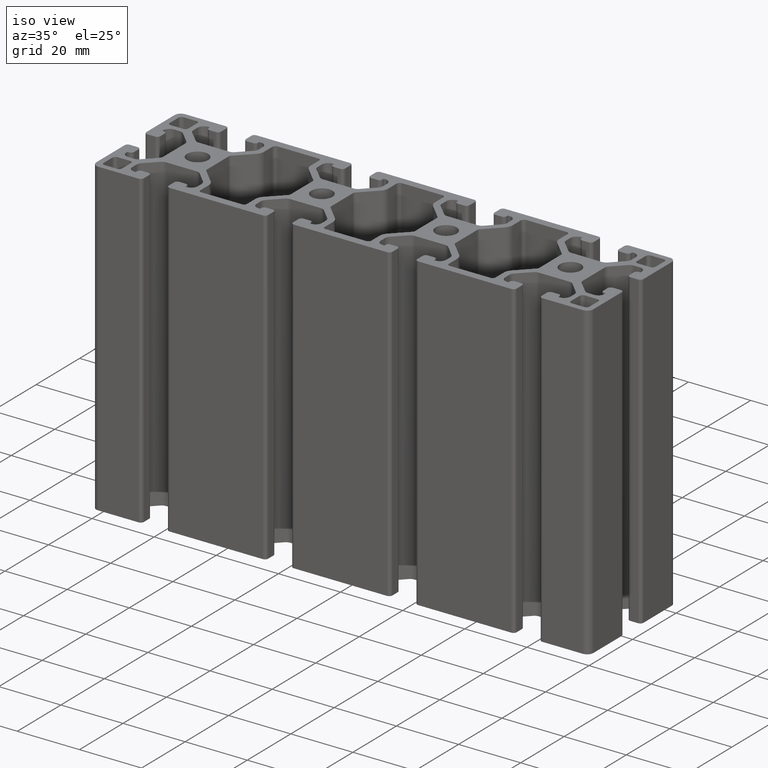
[diagram: clean part render]
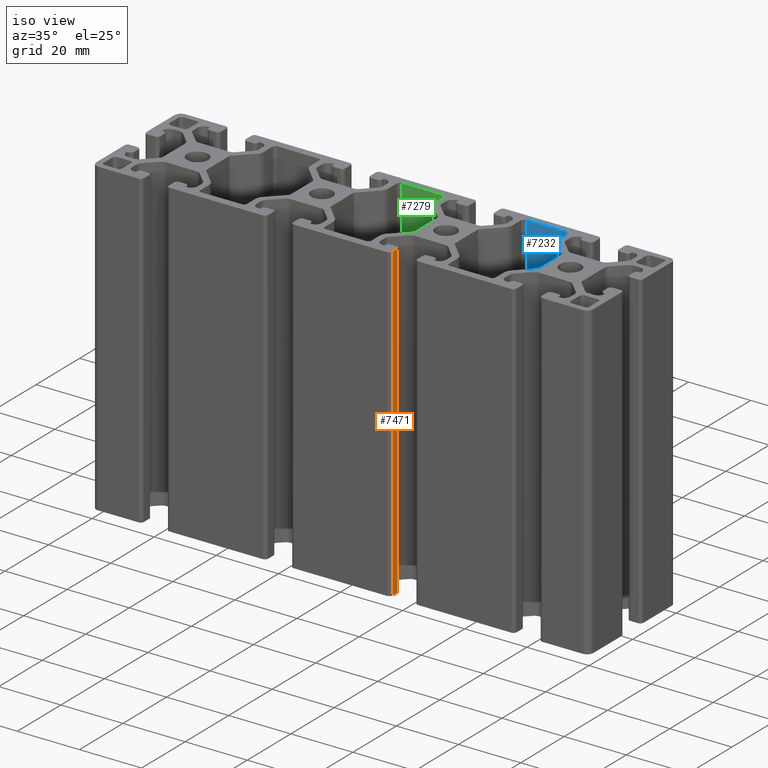
[diagram: same view with three faces highlighted in distinct colors, each labeled with its STEP entity id]
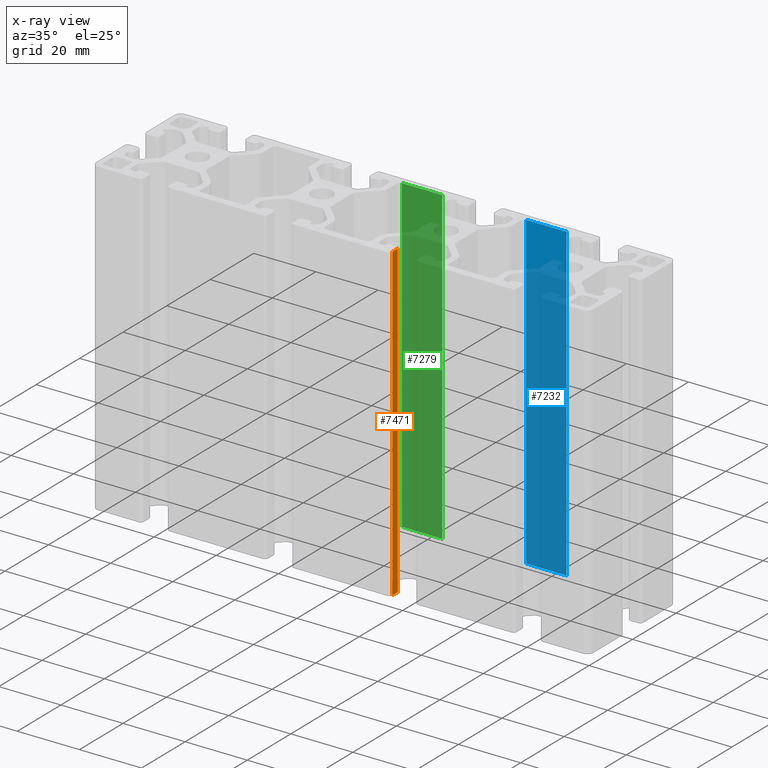
[diagram: x-ray of the same camera — body ghosted, the three highlighted faces saturated]
A machine part, iso view with three faces highlighted in distinct colors.
The next image is the same camera in x-ray (body ghosted, the three faces saturated) — at least one of them is partly hidden behind the body in this view.
Their STEP definitions:

[orange] entity #7471 — the highlighted planar face has unit normal (-1, 0, 0).
#172=PLANE('',#8105);
#497=FACE_OUTER_BOUND('',#877,.T.);
#877=EDGE_LOOP('',(#5813,#5814,#5815,#5816));
#1546=LINE('',#12143,#2310);
#1547=LINE('',#12146,#2311);
#1548=LINE('',#12148,#2312);
#1549=LINE('',#12149,#2313);
#2310=VECTOR('',#9882,100.);
#2311=VECTOR('',#9885,2.50000399189768);
#2312=VECTOR('',#9886,2.50000399189768);
#2313=VECTOR('',#9887,100.);
#3438=VERTEX_POINT('',#12137);
#3440=VERTEX_POINT('',#12141);
#3441=VERTEX_POINT('',#12145);
#3442=VERTEX_POINT('',#12147);
#4440=EDGE_CURVE('',#3440,#3438,#1546,.T.);
#4441=EDGE_CURVE('',#3438,#3441,#1547,.T.);
#4442=EDGE_CURVE('',#3442,#3440,#1548,.T.);
#4443=EDGE_CURVE('',#3442,#3441,#1549,.T.);
#5813=ORIENTED_EDGE('',*,*,#4441,.F.);
#5814=ORIENTED_EDGE('',*,*,#4440,.F.);
#5815=ORIENTED_EDGE('',*,*,#4442,.F.);
#5816=ORIENTED_EDGE('',*,*,#4443,.T.);
#7471=ADVANCED_FACE('',(#497),#172,.F.);
#8105=AXIS2_PLACEMENT_3D('',#12144,#9883,#9884);
#9882=DIRECTION('',(0.,0.,1.));
#9883=DIRECTION('center_axis',(-1.,0.,0.));
#9884=DIRECTION('ref_axis',(0.,-1.,0.));
#9885=DIRECTION('',(0.,1.,0.));
#9886=DIRECTION('',(0.,-1.,0.));
#9887=DIRECTION('',(0.,0.,1.));
#12137=CARTESIAN_POINT('',(16.,-19.0000019959489,100.));
#12141=CARTESIAN_POINT('',(16.,-19.0000019959489,0.));
#12143=CARTESIAN_POINT('',(16.,-19.0000019959489,0.));
#12144=CARTESIAN_POINT('Origin',(16.,-16.4999980040512,0.));
#12145=CARTESIAN_POINT('',(16.,-16.4999980040512,100.));
#12146=CARTESIAN_POINT('',(16.,-8.2499990020256,100.));
#12147=CARTESIAN_POINT('',(16.,-16.4999980040512,0.));
#12148=CARTESIAN_POINT('',(16.,-8.2499990020256,0.));
#12149=CARTESIAN_POINT('',(16.,-16.4999980040512,0.));

[blue] entity #7232 — the highlighted planar face has unit normal (0, 1, 0).
#50=PLANE('',#7632);
#258=FACE_OUTER_BOUND('',#636,.T.);
#636=EDGE_LOOP('',(#4861,#4862,#4863,#4864));
#1058=LINE('',#10690,#1822);
#1059=LINE('',#10693,#1823);
#1060=LINE('',#10695,#1824);
#1061=LINE('',#10696,#1825);
#1822=VECTOR('',#8448,100.);
#1823=VECTOR('',#8451,13.);
#1824=VECTOR('',#8452,13.);
#1825=VECTOR('',#8453,100.);
#2947=VERTEX_POINT('',#10686);
#2948=VERTEX_POINT('',#10688);
#2949=VERTEX_POINT('',#10692);
#2950=VERTEX_POINT('',#10694);
#3718=EDGE_CURVE('',#2948,#2947,#1058,.T.);
#3719=EDGE_CURVE('',#2947,#2949,#1059,.T.);
#3720=EDGE_CURVE('',#2950,#2948,#1060,.T.);
#3721=EDGE_CURVE('',#2950,#2949,#1061,.T.);
#4861=ORIENTED_EDGE('',*,*,#3719,.F.);
#4862=ORIENTED_EDGE('',*,*,#3718,.F.);
#4863=ORIENTED_EDGE('',*,*,#3720,.F.);
#4864=ORIENTED_EDGE('',*,*,#3721,.T.);
#7232=ADVANCED_FACE('',(#258),#50,.F.);
#7632=AXIS2_PLACEMENT_3D('',#10691,#8449,#8450);
#8448=DIRECTION('',(0.,0.,1.));
#8449=DIRECTION('center_axis',(0.,1.,0.));
#8450=DIRECTION('ref_axis',(-1.,0.,0.));
#8451=DIRECTION('',(1.,0.,0.));
#8452=DIRECTION('',(-1.,0.,0.));
#8453=DIRECTION('',(0.,0.,1.));
#10686=CARTESIAN_POINT('',(33.5,17.5,100.));
#10688=CARTESIAN_POINT('',(33.5,17.5,0.));
#10690=CARTESIAN_POINT('',(33.5,17.5,0.));
#10691=CARTESIAN_POINT('Origin',(46.5,17.5,0.));
#10692=CARTESIAN_POINT('',(46.5,17.5,100.));
#10693=CARTESIAN_POINT('',(23.25,17.5,100.));
#10694=CARTESIAN_POINT('',(46.5,17.5,0.));
#10695=CARTESIAN_POINT('',(23.25,17.5,0.));
#10696=CARTESIAN_POINT('',(46.5,17.5,0.));

[green] entity #7279 — the highlighted planar face has unit normal (0, 1, 0).
#74=PLANE('',#7725);
#305=FACE_OUTER_BOUND('',#683,.T.);
#683=EDGE_LOOP('',(#5049,#5050,#5051,#5052));
#1153=LINE('',#10971,#1917);
#1154=LINE('',#10975,#1918);
#1155=LINE('',#10977,#1919);
#1156=LINE('',#10978,#1920);
#1917=VECTOR('',#8727,100.);
#1918=VECTOR('',#8732,13.);
#1919=VECTOR('',#8733,100.);
#1920=VECTOR('',#8734,13.);
#3041=VERTEX_POINT('',#10968);
#3042=VERTEX_POINT('',#10970);
#3043=VERTEX_POINT('',#10974);
#3044=VERTEX_POINT('',#10976);
#3858=EDGE_CURVE('',#3042,#3041,#1153,.T.);
#3860=EDGE_CURVE('',#3043,#3041,#1154,.T.);
#3861=EDGE_CURVE('',#3044,#3043,#1155,.T.);
#3862=EDGE_CURVE('',#3042,#3044,#1156,.T.);
#5049=ORIENTED_EDGE('',*,*,#3860,.F.);
#5050=ORIENTED_EDGE('',*,*,#3861,.F.);
#5051=ORIENTED_EDGE('',*,*,#3862,.F.);
#5052=ORIENTED_EDGE('',*,*,#3858,.T.);
#7279=ADVANCED_FACE('',(#305),#74,.F.);
#7725=AXIS2_PLACEMENT_3D('',#10973,#8730,#8731);
#8727=DIRECTION('',(0.,0.,1.));
#8730=DIRECTION('center_axis',(0.,1.,0.));
#8731=DIRECTION('ref_axis',(-1.,0.,0.));
#8732=DIRECTION('',(1.,0.,0.));
#8733=DIRECTION('',(0.,0.,1.));
#8734=DIRECTION('',(-1.,0.,0.));
#10968=CARTESIAN_POINT('',(6.5,17.5,100.));
#10970=CARTESIAN_POINT('',(6.5,17.5,0.));
#10971=CARTESIAN_POINT('',(6.5,17.5,0.));
#10973=CARTESIAN_POINT('Origin',(6.5,17.5,0.));
#10974=CARTESIAN_POINT('',(-6.5,17.5,100.));
#10975=CARTESIAN_POINT('',(3.25,17.5,100.));
#10976=CARTESIAN_POINT('',(-6.5,17.5,0.));
#10977=CARTESIAN_POINT('',(-6.5,17.5,0.));
#10978=CARTESIAN_POINT('',(3.25,17.5,0.));